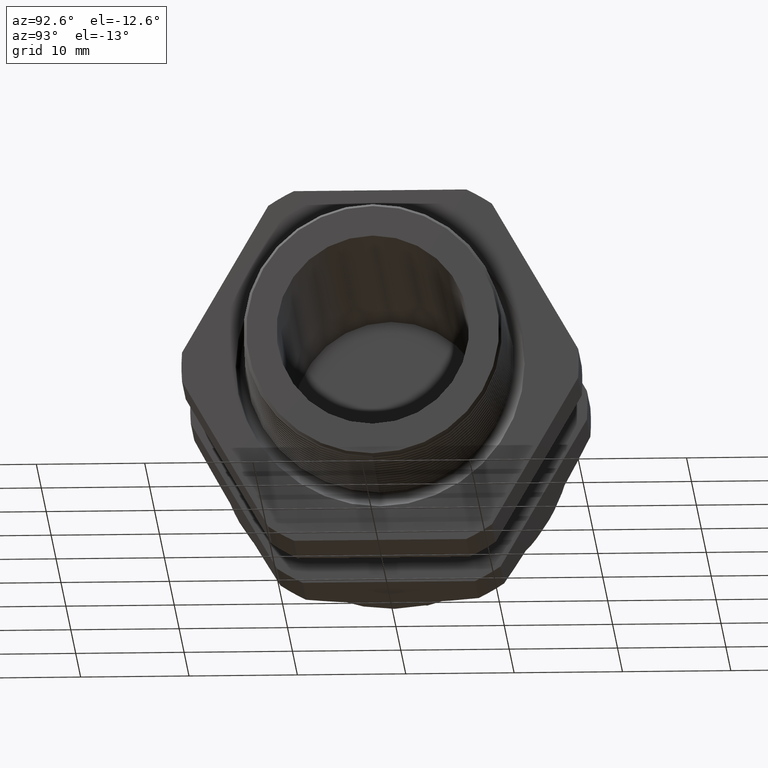
[diagram: clean part render]
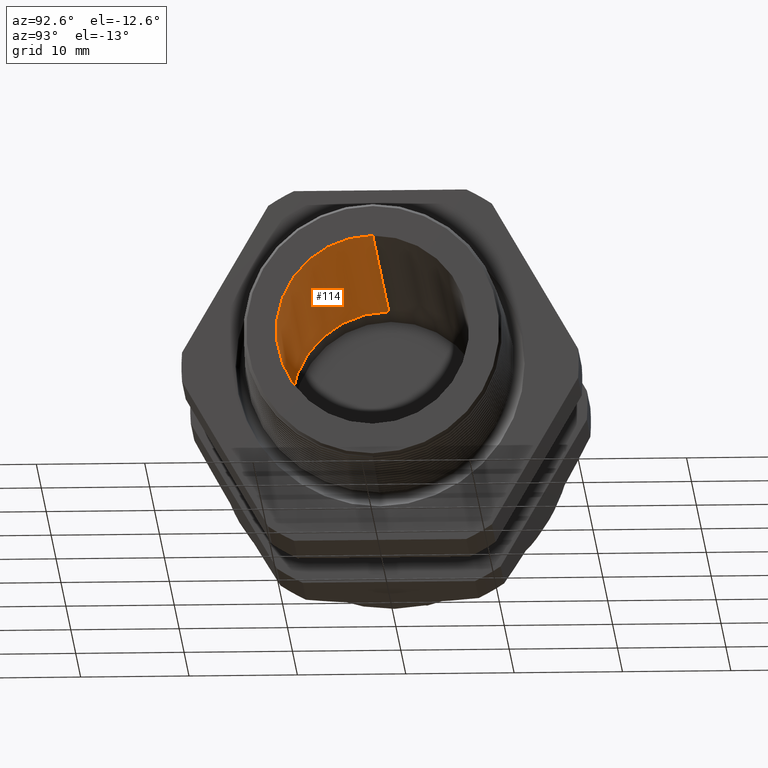
[diagram: same view with one face highlighted and labeled with its STEP entity id]
A machine part, auxiliary view. The second image highlights one B-rep face of the part: STEP entity #114.
In plain terms, the highlighted conical surface has half-angle 0.225 deg.
Its self-contained STEP definition (entity closure, byte-faithful):
#89 = ORIENTED_EDGE ( 'NONE', *, *, #90, .T. ) ;
#90 = EDGE_CURVE ( 'NONE', #116, #111, #2214, .T. ) ;
#105 = ORIENTED_EDGE ( 'NONE', *, *, #117, .T. ) ;
#109 = EDGE_LOOP ( 'NONE', ( #105, #89, #142, #147 ) ) ;
#111 = VERTEX_POINT ( 'NONE', #2229 ) ;
#112 = VERTEX_POINT ( 'NONE', #2228 ) ;
#113 = EDGE_CURVE ( 'NONE', #122, #111, #2226, .T. ) ;
#114 = ADVANCED_FACE ( 'NONE', ( #2227 ), #2220, .F. ) ;
#116 = VERTEX_POINT ( 'NONE', #2216 ) ;
#117 = EDGE_CURVE ( 'NONE', #112, #116, #2278, .T. ) ;
#122 = VERTEX_POINT ( 'NONE', #2269 ) ;
#142 = ORIENTED_EDGE ( 'NONE', *, *, #113, .F. ) ;
#147 = ORIENTED_EDGE ( 'NONE', *, *, #148, .F. ) ;
#148 = EDGE_CURVE ( 'NONE', #112, #122, #2294, .T. ) ;
#2211 = DIRECTION ( 'NONE',  ( -0.9999923145896616500, 4.801296709561271600E-019, -0.003920556288477723900 ) ) ;
#2212 = VECTOR ( 'NONE', #2211, 39.37007874015748100 ) ;
#2213 = CARTESIAN_POINT ( 'NONE',  ( -1.010314960629921100, 4.347496136973102900E-017, -0.3549999999999999300 ) ) ;
#2214 = LINE ( 'NONE', #2213, #2212 ) ;
#2215 = CARTESIAN_POINT ( 'NONE',  ( 0.2800000000000000300, 0.0000000000000000000, 0.0000000000000000000 ) ) ;
#2216 = CARTESIAN_POINT ( 'NONE',  ( 0.2800000000000000300, 4.316519974034729800E-017, -0.3499412086880983000 ) ) ;
#2217 = DIRECTION ( 'NONE',  ( 0.0000000000000000000, 0.0000000000000000000, 1.000000000000000000 ) ) ;
#2218 = DIRECTION ( 'NONE',  ( -1.000000000000000000, 0.0000000000000000000, 0.0000000000000000000 ) ) ;
#2219 = AXIS2_PLACEMENT_3D ( 'NONE', #2221, #2218, #2217 ) ;
#2220 = CONICAL_SURFACE ( 'NONE', #2219, 0.3549999999999999300, 0.003920566332203210600 ) ;
#2221 = CARTESIAN_POINT ( 'NONE',  ( -1.010314960629921100, 0.0000000000000000000, 0.0000000000000000000 ) ) ;
#2222 = DIRECTION ( 'NONE',  ( 0.0000000000000000000, 0.0000000000000000000, -1.000000000000000000 ) ) ;
#2223 = DIRECTION ( 'NONE',  ( 1.000000000000000000, 0.0000000000000000000, 0.0000000000000000000 ) ) ;
#2224 = CARTESIAN_POINT ( 'NONE',  ( -1.010314960629921100, 0.0000000000000000000, 0.0000000000000000000 ) ) ;
#2225 = AXIS2_PLACEMENT_3D ( 'NONE', #2224, #2223, #2222 ) ;
#2226 = CIRCLE ( 'NONE', #2225, 0.3549999999999999300 ) ;
#2227 = FACE_OUTER_BOUND ( 'NONE', #109, .T. ) ;
#2228 = CARTESIAN_POINT ( 'NONE',  ( 0.2800000000000000300, 0.0000000000000000000, 0.3499412086880983000 ) ) ;
#2229 = CARTESIAN_POINT ( 'NONE',  ( -1.010314960629921100, 4.347496136973102900E-017, -0.3549999999999999300 ) ) ;
#2269 = CARTESIAN_POINT ( 'NONE',  ( -1.010314960629921100, 0.0000000000000000000, 0.3549999999999999300 ) ) ;
#2275 = DIRECTION ( 'NONE',  ( 0.0000000000000000000, 0.0000000000000000000, -1.000000000000000000 ) ) ;
#2276 = DIRECTION ( 'NONE',  ( 1.000000000000000000, 0.0000000000000000000, 0.0000000000000000000 ) ) ;
#2277 = AXIS2_PLACEMENT_3D ( 'NONE', #2215, #2276, #2275 ) ;
#2278 = CIRCLE ( 'NONE', #2277, 0.3499412086880983000 ) ;
#2291 = DIRECTION ( 'NONE',  ( -0.9999923145896616500, 0.0000000000000000000, 0.003920556288477723900 ) ) ;
#2292 = VECTOR ( 'NONE', #2291, 39.37007874015748100 ) ;
#2293 = CARTESIAN_POINT ( 'NONE',  ( -1.010314960629921100, 0.0000000000000000000, 0.3549999999999999300 ) ) ;
#2294 = LINE ( 'NONE', #2293, #2292 ) ;